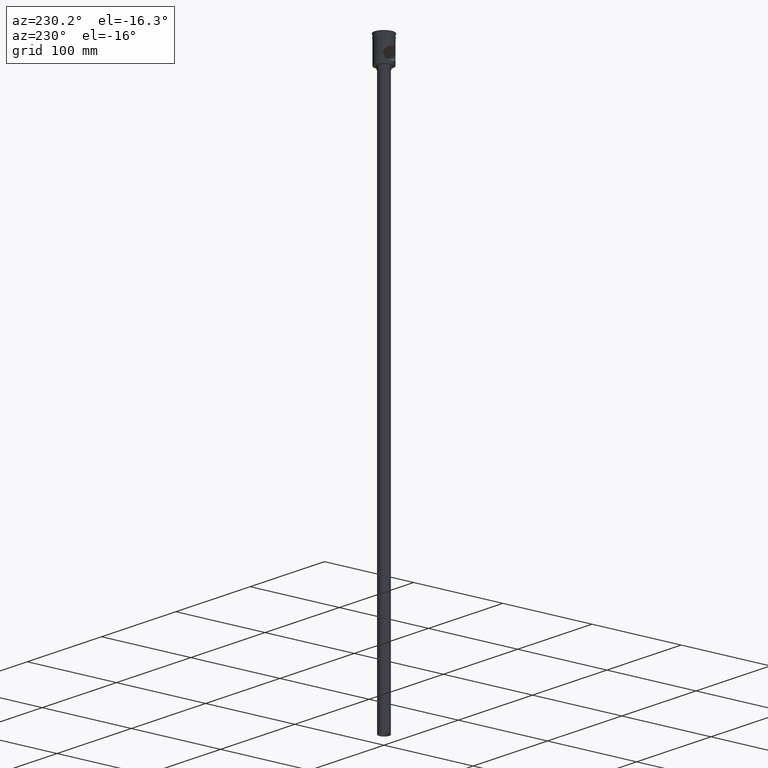
[diagram: clean part render]
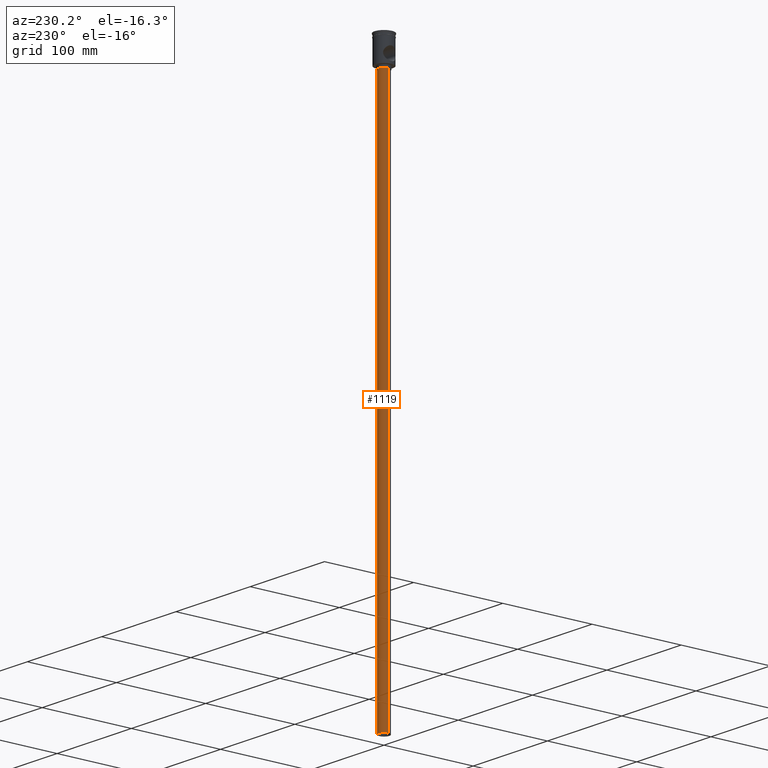
[diagram: same view with one face highlighted and labeled with its STEP entity id]
A machine part, auxiliary view. The second image highlights one B-rep face of the part: STEP entity #1119.
In plain terms, the highlighted cylindrical surface (edge-blend (fillet) strip) has radius 6 mm, axis along (-0, -0, 1).
Its self-contained STEP definition (entity closure, byte-faithful):
#242 = CARTESIAN_POINT ( 'NONE',  ( 0.000000000000000000, 0.000000000000000000, -629.5000000000000000 ) ) ;
#283 = EDGE_LOOP ( 'NONE', ( #1213, #329, #1282, #495 ) ) ;
#329 = ORIENTED_EDGE ( 'NONE', *, *, #1069, .T. ) ;
#330 = CARTESIAN_POINT ( 'NONE',  ( 6.000000000000000888, 0.000000000000000000, -629.5000000000000000 ) ) ;
#339 = VERTEX_POINT ( 'NONE', #736 ) ;
#351 = DIRECTION ( 'NONE',  ( -0.000000000000000000, -0.000000000000000000, 1.000000000000000000 ) ) ;
#375 = DIRECTION ( 'NONE',  ( 0.000000000000000000, 0.000000000000000000, -1.000000000000000000 ) ) ;
#393 = VERTEX_POINT ( 'NONE', #1024 ) ;
#449 = EDGE_CURVE ( 'NONE', #1028, #945, #815, .T. ) ;
#462 = AXIS2_PLACEMENT_3D ( 'NONE', #783, #899, #1244 ) ;
#478 = CARTESIAN_POINT ( 'NONE',  ( 6.000000000000000888, 0.000000000000000000, -629.5000000000000000 ) ) ;
#487 = FACE_OUTER_BOUND ( 'NONE', #283, .T. ) ;
#495 = ORIENTED_EDGE ( 'NONE', *, *, #449, .F. ) ;
#507 = CYLINDRICAL_SURFACE ( 'NONE', #1036, 6.000000000000000888 ) ;
#736 = CARTESIAN_POINT ( 'NONE',  ( -6.000000000000000888, 7.347880794884120722E-16, -32.50000000000000000 ) ) ;
#739 = EDGE_CURVE ( 'NONE', #393, #1028, #880, .T. ) ;
#783 = CARTESIAN_POINT ( 'NONE',  ( 0.000000000000000000, 0.000000000000000000, -629.5000000000000000 ) ) ;
#807 = AXIS2_PLACEMENT_3D ( 'NONE', #835, #375, #970 ) ;
#815 = LINE ( 'NONE', #330, #1233 ) ;
#835 = CARTESIAN_POINT ( 'NONE',  ( 0.000000000000000000, 0.000000000000000000, -32.50000000000000000 ) ) ;
#849 = CARTESIAN_POINT ( 'NONE',  ( -6.000000000000000888, 7.347880794884120722E-16, -629.5000000000000000 ) ) ;
#880 = CIRCLE ( 'NONE', #462, 6.000000000000000888 ) ;
#899 = DIRECTION ( 'NONE',  ( 0.000000000000000000, 0.000000000000000000, -1.000000000000000000 ) ) ;
#945 = VERTEX_POINT ( 'NONE', #1395 ) ;
#970 = DIRECTION ( 'NONE',  ( -1.000000000000000000, 0.000000000000000000, 0.000000000000000000 ) ) ;
#1002 = EDGE_CURVE ( 'NONE', #339, #945, #1304, .T. ) ;
#1024 = CARTESIAN_POINT ( 'NONE',  ( -6.000000000000000888, 7.347880794884120722E-16, -629.5000000000000000 ) ) ;
#1028 = VERTEX_POINT ( 'NONE', #478 ) ;
#1036 = AXIS2_PLACEMENT_3D ( 'NONE', #242, #1212, #1297 ) ;
#1069 = EDGE_CURVE ( 'NONE', #393, #339, #1307, .T. ) ;
#1119 = ADVANCED_FACE ( 'NONE', ( #487 ), #507, .T. ) ;
#1207 = VECTOR ( 'NONE', #351, 1000.000000000000000 ) ;
#1212 = DIRECTION ( 'NONE',  ( -0.000000000000000000, -0.000000000000000000, 1.000000000000000000 ) ) ;
#1213 = ORIENTED_EDGE ( 'NONE', *, *, #739, .F. ) ;
#1233 = VECTOR ( 'NONE', #1391, 1000.000000000000000 ) ;
#1244 = DIRECTION ( 'NONE',  ( -1.000000000000000000, 0.000000000000000000, 0.000000000000000000 ) ) ;
#1282 = ORIENTED_EDGE ( 'NONE', *, *, #1002, .T. ) ;
#1297 = DIRECTION ( 'NONE',  ( 1.000000000000000000, 0.000000000000000000, 0.000000000000000000 ) ) ;
#1304 = CIRCLE ( 'NONE', #807, 6.000000000000000888 ) ;
#1307 = LINE ( 'NONE', #849, #1207 ) ;
#1391 = DIRECTION ( 'NONE',  ( -0.000000000000000000, -0.000000000000000000, 1.000000000000000000 ) ) ;
#1395 = CARTESIAN_POINT ( 'NONE',  ( 6.000000000000000888, 0.000000000000000000, -32.50000000000000000 ) ) ;